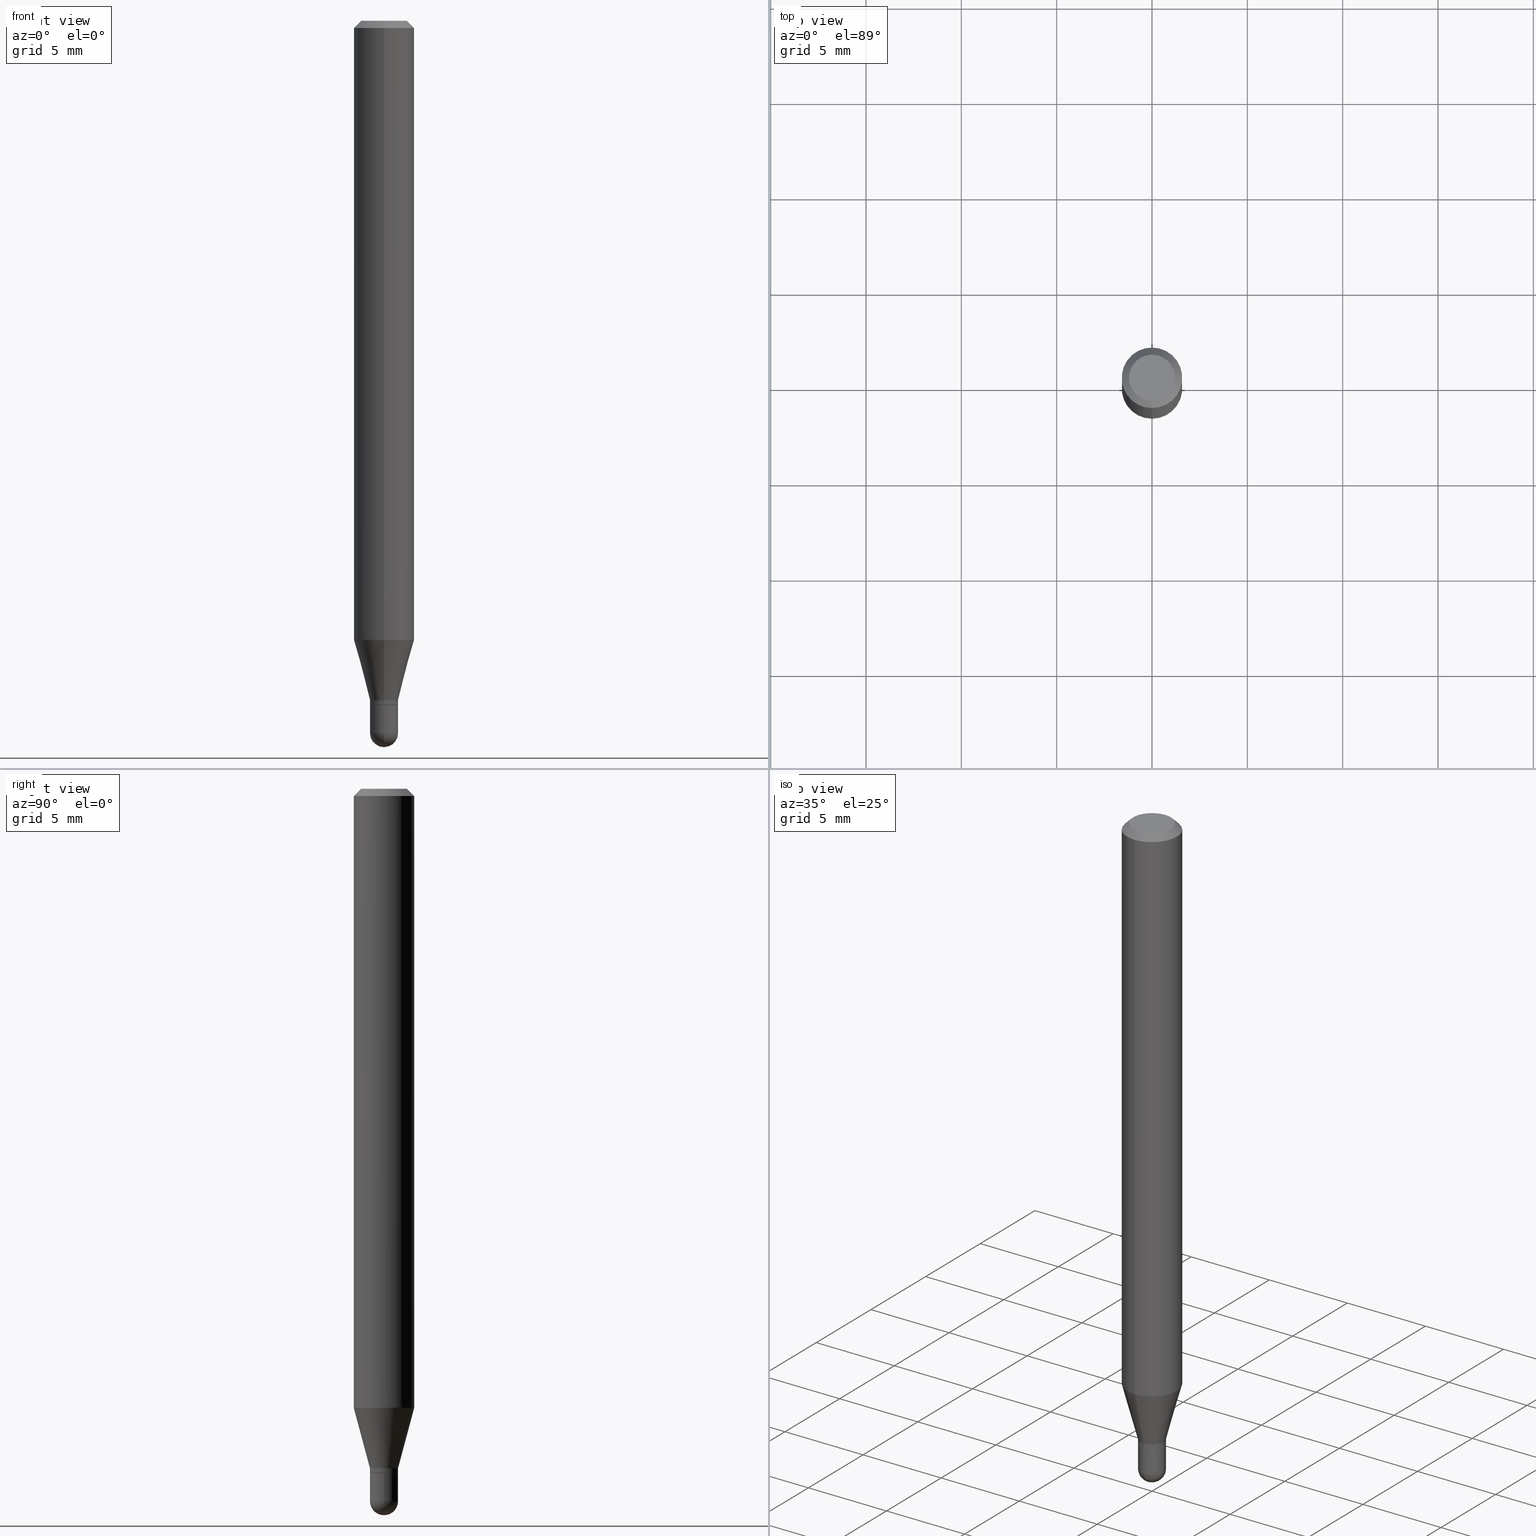
[diagram: canonical four-view strip — front | top / right | iso, engineering-drawing reading convention]
A machine part, canonical four-view strip (front | top / right | iso — engineering-drawing reading convention). The complete STEP part file that produces these views, byte-faithful:
ISO-10303-21;
HEADER;
FILE_DESCRIPTION (( 'STEP AP203' ),
    '1' );
FILE_NAME ('00793.STEP',
    '2024-03-07T18:23:17',
    ( '' ),
    ( '' ),
    'SwSTEP 2.0',
    'SolidWorks 2023',
    '' );
FILE_SCHEMA (( 'CONFIG_CONTROL_DESIGN' ));
ENDSEC;

DATA;
#1 = CONICAL_SURFACE ( 'NONE', #42, 0.02899999999999992514, 0.2617993877991505736 ) ;
#2 = CALENDAR_DATE ( 2024, 7, 3 ) ;
#3 = DIRECTION ( 'NONE',  ( -6.982962677686265922E-15, -1.000000000000000000, 3.483106191921935554E-15 ) ) ;
#4 = AXIS2_PLACEMENT_3D ( 'NONE', #384, #190, #224 ) ;
#5 = DIMENSIONAL_EXPONENTS ( 1.000000000000000000, 0.000000000000000000, 0.000000000000000000, 0.000000000000000000, 0.000000000000000000, 0.000000000000000000, 0.000000000000000000 ) ;
#6 = CALENDAR_DATE ( 2024, 7, 3 ) ;
#7 = DIRECTION ( 'NONE',  ( 2.445483780247488928E-29, -3.491459895133586651E-15, -1.000000000000000000 ) ) ;
#8 = ORGANIZATION ( 'UNSPECIFIED', 'UNSPECIFIED', '' ) ;
#9 = COORDINATED_UNIVERSAL_TIME_OFFSET ( 5, 0, .BEHIND. ) ;
#10 = DIRECTION ( 'NONE',  ( 2.438088387897960049E-29, -3.491481338843145188E-15, -1.000000000000000000 ) ) ;
#11 = EDGE_LOOP ( 'NONE', ( #412, #192, #209, #204, #293 ) ) ;
#12 = PERSON_AND_ORGANIZATION ( #69, #8 ) ;
#13 = DIRECTION ( 'NONE',  ( -6.982962677686265922E-15, -1.000000000000000000, 3.491459895133586651E-15 ) ) ;
#14 = ADVANCED_FACE ( 'NONE', ( #429 ), #75, .T. ) ;
#15 = VERTEX_POINT ( 'NONE', #61 ) ;
#16 = LINE ( 'NONE', #215, #405 ) ;
#17 = ORIENTED_EDGE ( 'NONE', *, *, #63, .F. ) ;
#18 = LINE ( 'NONE', #26, #271 ) ;
#19 = VERTEX_POINT ( 'NONE', #333 ) ;
#20 = DIRECTION ( 'NONE',  ( -2.445483780247488928E-29, 3.491459895133586651E-15, 1.000000000000000000 ) ) ;
#21 = CIRCLE ( 'NONE', #115, 0.06250000000000000000 ) ;
#22 = EDGE_LOOP ( 'NONE', ( #465, #426 ) ) ;
#23 = DIRECTION ( 'NONE',  ( 5.024295867788190974E-15, 0.7071067811865681119, 0.7071067811865270336 ) ) ;
#24 = PRODUCT_DEFINITION ( 'UNKNOWN', '', #453, #170 ) ;
#25 = ORIENTED_EDGE ( 'NONE', *, *, #340, .T. ) ;
#26 = CARTESIAN_POINT ( 'NONE',  ( 2.060573933704627882E-16, 0.02899999999999502281, -1.403000000000000025 ) ) ;
#27 = AXIS2_PLACEMENT_3D ( 'NONE', #417, #62, #143 ) ;
#28 = CC_DESIGN_PERSON_AND_ORGANIZATION_ASSIGNMENT ( #119, #45, ( #24 ) ) ;
#29 = CARTESIAN_POINT ( 'NONE',  ( 2.167025876121797914E-46, -3.093900683091128440E-32, -8.861338168035158887E-18 ) ) ;
#30 = CARTESIAN_POINT ( 'NONE',  ( 3.597284613898336423E-29, -5.135969049438267814E-15, -1.471000000000000307 ) ) ;
#31 = VERTEX_POINT ( 'NONE', #305 ) ;
#32 = DIRECTION ( 'NONE',  ( -6.982962677686265922E-15, -1.000000000000000000, 0.000000000000000000 ) ) ;
#33 = ORIENTED_EDGE ( 'NONE', *, *, #41, .T. ) ;
#34 = AXIS2_PLACEMENT_3D ( 'NONE', #303, #102, #341 ) ;
#35 = CARTESIAN_POINT ( 'NONE',  ( 0.000000000000000000, 0.000000000000000000, 0.000000000000000000 ) ) ;
#36 = VERTEX_POINT ( 'NONE', #107 ) ;
#37 = APPROVAL_DATE_TIME ( #440, #409 ) ;
#38 = DIRECTION ( 'NONE',  ( -6.982962677686266711E-15, -1.000000000000000000, 3.491459895133587439E-15 ) ) ;
#39 = APPLICATION_CONTEXT ( 'configuration controlled 3d designs of mechanical parts and assemblies' ) ;
#40 = PLANE ( 'NONE',  #455 ) ;
#41 = EDGE_CURVE ( 'NONE', #361, #131, #247, .T. ) ;
#42 = AXIS2_PLACEMENT_3D ( 'NONE', #407, #54, #210 ) ;
#43 = CALENDAR_DATE ( 2024, 7, 3 ) ;
#44 = CARTESIAN_POINT ( 'NONE',  ( 3.431013743687227308E-29, -4.898518232872422508E-15, -1.403000000000000025 ) ) ;
#45 = PERSON_AND_ORGANIZATION_ROLE ( 'creator' ) ;
#46 = FACE_OUTER_BOUND ( 'NONE', #370, .T. ) ;
#47 = ORIENTED_EDGE ( 'NONE', *, *, #337, .T. ) ;
#48 = COORDINATED_UNIVERSAL_TIME_OFFSET ( 5, 0, .BEHIND. ) ;
#49 = FACE_OUTER_BOUND ( 'NONE', #68, .T. ) ;
#50 = VERTEX_POINT ( 'NONE', #452 ) ;
#51 = AXIS2_PLACEMENT_3D ( 'NONE', #451, #20, #132 ) ;
#52 = DIRECTION ( 'NONE',  ( -6.982962677686265922E-15, -1.000000000000000000, 0.000000000000000000 ) ) ;
#53 = EDGE_LOOP ( 'NONE', ( #136, #47, #467, #424 ) ) ;
#54 = DIRECTION ( 'NONE',  ( -2.445483780247488928E-29, 3.491459895133586651E-15, 1.000000000000000000 ) ) ;
#55 = CARTESIAN_POINT ( 'NONE',  ( 3.594804631659716252E-29, -5.139520525155795537E-15, -1.471000000000000307 ) ) ;
#56 = ORIENTED_EDGE ( 'NONE', *, *, #484, .T. ) ;
#57 = AXIS2_PLACEMENT_3D ( 'NONE', #168, #130, #321 ) ;
#58 = CARTESIAN_POINT ( 'NONE',  ( 0.02900000000000000147, -5.135969049438267025E-15, -1.413000000000000256 ) ) ;
#59 = CIRCLE ( 'NONE', #414, 0.02850000000000000103 ) ;
#60 = CIRCLE ( 'NONE', #381, 0.06250000000000000000 ) ;
#61 = CARTESIAN_POINT ( 'NONE',  ( 2.025059176529374809E-16, 0.02899999999999483546, -1.471000000000000307 ) ) ;
#62 = DIRECTION ( 'NONE',  ( -2.445483780247488928E-29, 3.491459895133586651E-15, 1.000000000000000000 ) ) ;
#63 = EDGE_CURVE ( 'NONE', #183, #131, #95, .T. ) ;
#64 = CARTESIAN_POINT ( 'NONE',  ( -1.990144363140240186E-16, -0.02850000000000493458, -1.413000000000000256 ) ) ;
#65 = DIRECTION ( 'NONE',  ( -6.982962677686266711E-15, -1.000000000000000000, 3.491459895133587439E-15 ) ) ;
#66 = CIRCLE ( 'NONE', #324, 0.02900000000000000147 ) ;
#67 = DIRECTION ( 'NONE',  ( -2.445468806185136597E-29, 3.491481338843145583E-15, 1.000000000000000000 ) ) ;
#68 = EDGE_LOOP ( 'NONE', ( #25, #110 ) ) ;
#69 = PERSON ( 'UNSPECIFIED', 'UNSPECIFIED', 'UNSPECIFIED', ('UNSPECIFIED'), ('UNSPECIFIED'), ('UNSPECIFIED') ) ;
#70 = DIRECTION ( 'NONE',  ( -2.445483780247488928E-29, 3.491459895133586651E-15, 1.000000000000000000 ) ) ;
#71 = ORIENTED_EDGE ( 'NONE', *, *, #108, .F. ) ;
#72 = VERTEX_POINT ( 'NONE', #432 ) ;
#73 = CLOSED_SHELL ( 'NONE', ( #507, #369, #164, #14, #304, #359, #459, #83, #258, #392, #378, #123 ) ) ;
#74 = VECTOR ( 'NONE', #487, 39.37007874015748143 ) ;
#75 = CYLINDRICAL_SURFACE ( 'NONE', #260, 0.06250000000000000000 ) ;
#76 = EDGE_CURVE ( 'NONE', #124, #250, #338, .T. ) ;
#77 = CARTESIAN_POINT ( 'NONE',  ( -4.364351673553912750E-16, -0.06250000000000005551, -0.01499999999999979128 ) ) ;
#78 = ADVANCED_FACE ( 'NONE', ( #396 ), #282, .T. ) ;
#79 = DATE_TIME_ROLE ( 'creation_date' ) ;
#80 = DIRECTION ( 'NONE',  ( 2.445483780247488928E-29, -3.491459895133586651E-15, -1.000000000000000000 ) ) ;
#81 = CIRCLE ( 'NONE', #471, 0.02900000000000000147 ) ;
#82 = FACE_OUTER_BOUND ( 'NONE', #328, .T. ) ;
#83 = ADVANCED_FACE ( 'NONE', ( #82 ), #470, .T. ) ;
#84 = ORIENTED_EDGE ( 'NONE', *, *, #246, .F. ) ;
#85 = PERSON_AND_ORGANIZATION ( #69, #8 ) ;
#86 = DIRECTION ( 'NONE',  ( -1.000000000000000000, 6.982962677686265922E-15, -4.876176775795935793E-29 ) ) ;
#87 = CARTESIAN_POINT ( 'NONE',  ( 2.060573933704622951E-16, 0.02899999999999489098, -1.412500000000000311 ) ) ;
#88 = ORIENTED_EDGE ( 'NONE', *, *, #246, .T. ) ;
#89 = AXIS2_PLACEMENT_3D ( 'NONE', #348, #383, #342 ) ;
#90 = DIRECTION ( 'NONE',  ( 6.982962677686265922E-15, 1.000000000000000000, 0.000000000000000000 ) ) ;
#91 = ORIENTED_EDGE ( 'NONE', *, *, #277, .T. ) ;
#92 = DIRECTION ( 'NONE',  ( 1.000000000000000000, -6.982962677686265922E-15, 0.000000000000000000 ) ) ;
#93 = EDGE_LOOP ( 'NONE', ( #445, #177, #180, #406 ) ) ;
#94 = DIRECTION ( 'NONE',  ( 2.445483780247488368E-29, -3.491459895133586651E-15, -1.000000000000000000 ) ) ;
#95 = LINE ( 'NONE', #395, #373 ) ;
#96 = AXIS2_PLACEMENT_3D ( 'NONE', #44, #240, #120 ) ;
#97 = CARTESIAN_POINT ( 'NONE',  ( 3.594804631659716252E-29, -5.139520525155795537E-15, -1.471000000000000307 ) ) ;
#98 = VECTOR ( 'NONE', #423, 39.37007874015748143 ) ;
#99 = EDGE_CURVE ( 'NONE', #492, #72, #276, .T. ) ;
#100 = DIRECTION ( 'NONE',  ( -2.445483780247488928E-29, 3.491459895133586651E-15, 1.000000000000000000 ) ) ;
#101 = DIRECTION ( 'NONE',  ( -2.445483780247488928E-29, 3.491459895133586651E-15, 1.000000000000000000 ) ) ;
#102 = DIRECTION ( 'NONE',  ( -2.445483780247488928E-29, 3.491459895133586651E-15, 1.000000000000000000 ) ) ;
#103 = AXIS2_PLACEMENT_3D ( 'NONE', #457, #100, #52 ) ;
#104 = EDGE_LOOP ( 'NONE', ( #367, #478, #415, #331 ) ) ;
#105 = PRODUCT_DEFINITION_SHAPE ( 'NONE', 'NONE',  #24 ) ;
#106 = CARTESIAN_POINT ( 'NONE',  ( 2.042810365310630292E-16, 0.02849999999999506400, -1.413000000000000256 ) ) ;
#107 = CARTESIAN_POINT ( 'NONE',  ( -2.060573933703928507E-16, -0.02900000000000510503, -1.471000000000000307 ) ) ;
#108 = EDGE_CURVE ( 'NONE', #131, #361, #364, .T. ) ;
#109 = DIRECTION ( 'NONE',  ( -6.982962677686265922E-15, -1.000000000000000000, 0.000000000000000000 ) ) ;
#110 = ORIENTED_EDGE ( 'NONE', *, *, #482, .T. ) ;
#111 = APPROVAL_PERSON_ORGANIZATION ( #202, #409, #281 ) ;
#112 = COORDINATED_UNIVERSAL_TIME_OFFSET ( 5, 0, .BEHIND. ) ;
#113 = EDGE_LOOP ( 'NONE', ( #385, #253, #56, #84 ) ) ;
#114 = VECTOR ( 'NONE', #232, 39.37007874015748143 ) ;
#115 = AXIS2_PLACEMENT_3D ( 'NONE', #376, #368, #217 ) ;
#116 = ADVANCED_FACE ( 'NONE', ( #49 ), #40, .F. ) ;
#117 = APPLICATION_PROTOCOL_DEFINITION ( 'international standard', 'config_control_design', 1994, #39 ) ;
#118 = DIRECTION ( 'NONE',  ( -2.445483780247488928E-29, 3.491459895133586651E-15, 1.000000000000000000 ) ) ;
#119 = PERSON_AND_ORGANIZATION ( #69, #8 ) ;
#120 = DIRECTION ( 'NONE',  ( -6.982962677686265922E-15, -1.000000000000000000, 0.000000000000000000 ) ) ;
#121 = SHAPE_DEFINITION_REPRESENTATION ( #105, #497 ) ;
#122 = LINE ( 'NONE', #444, #505 ) ;
#123 = ADVANCED_FACE ( 'NONE', ( #46 ), #512, .T. ) ;
#124 = VERTEX_POINT ( 'NONE', #77 ) ;
#125 = CIRCLE ( 'NONE', #169, 0.02899999999999992514 ) ;
#126 = CC_DESIGN_APPROVAL ( #315, ( #462 ) ) ;
#127 = CALENDAR_DATE ( 2024, 7, 3 ) ;
#128 = AXIS2_PLACEMENT_3D ( 'NONE', #356, #129, #13 ) ;
#129 = DIRECTION ( 'NONE',  ( -2.445483780247488928E-29, 3.491459895133586651E-15, 1.000000000000000000 ) ) ;
#130 = DIRECTION ( 'NONE',  ( -2.445483780247488928E-29, 3.491459895133586651E-15, 1.000000000000000000 ) ) ;
#131 = VERTEX_POINT ( 'NONE', #201 ) ;
#132 = DIRECTION ( 'NONE',  ( -6.982962677686265922E-15, -1.000000000000000000, 0.000000000000000000 ) ) ;
#133 = AXIS2_PLACEMENT_3D ( 'NONE', #30, #421, #259 ) ;
#134 = EDGE_CURVE ( 'NONE', #142, #361, #317, .T. ) ;
#135 = DIRECTION ( 'NONE',  ( -1.000000000000000000, 6.982962677686266711E-15, -4.883557194083113462E-29 ) ) ;
#136 = ORIENTED_EDGE ( 'NONE', *, *, #267, .F. ) ;
#137 = DIRECTION ( 'NONE',  ( 1.000000000000000000, -6.982962677686265922E-15, 0.000000000000000000 ) ) ;
#138 = DIRECTION ( 'NONE',  ( -2.445483780247488928E-29, 3.491459895133586651E-15, 1.000000000000000000 ) ) ;
#139 = PLANE ( 'NONE',  #237 ) ;
#140 = MANIFOLD_SOLID_BREP ( 'Body-Move/Copy2[2]', #73 ) ;
#141 = EDGE_CURVE ( 'NONE', #15, #492, #404, .T. ) ;
#142 = VERTEX_POINT ( 'NONE', #243 ) ;
#143 = DIRECTION ( 'NONE',  ( -6.982962677686265922E-15, -1.000000000000000000, 4.370956789862821150E-15 ) ) ;
#144 = AXIS2_PLACEMENT_3D ( 'NONE', #29, #70, #65 ) ;
#145 = DIRECTION ( 'NONE',  ( -6.982962677686265922E-15, -1.000000000000000000, 3.491459895133586651E-15 ) ) ;
#146 = LOCAL_TIME ( 13, 23, 17.00000000000000000, #275 ) ;
#147 = LOCAL_TIME ( 13, 23, 17.00000000000000000, #9 ) ;
#148 = CARTESIAN_POINT ( 'NONE',  ( 3.455468581489702217E-29, -4.933432831823758516E-15, -1.413000000000000256 ) ) ;
#149 = AXIS2_PLACEMENT_3D ( 'NONE', #159, #480, #351 ) ;
#150 = CIRCLE ( 'NONE', #279, 0.02899999999999994249 ) ;
#151 = DIRECTION ( 'NONE',  ( -6.982962677686265922E-15, -1.000000000000000000, 3.491459895133586651E-15 ) ) ;
#152 = CARTESIAN_POINT ( 'NONE',  ( 3.454245839599578219E-29, -4.931687101876191282E-15, -1.412500000000000311 ) ) ;
#153 = EDGE_LOOP ( 'NONE', ( #175, #387, #307, #280 ) ) ;
#154 = APPROVAL_PERSON_ORGANIZATION ( #391, #502, #354 ) ;
#155 = FACE_OUTER_BOUND ( 'NONE', #11, .T. ) ;
#156 = ORIENTED_EDGE ( 'NONE', *, *, #157, .T. ) ;
#157 = EDGE_CURVE ( 'NONE', #250, #124, #60, .T. ) ;
#158 = ADVANCED_FACE ( 'NONE', ( #363 ), #326, .T. ) ;
#159 = CARTESIAN_POINT ( 'NONE',  ( 0.000000000000000000, 0.000000000000000000, 0.000000000000000000 ) ) ;
#160 = AXIS2_PLACEMENT_3D ( 'NONE', #199, #163, #475 ) ;
#161 = CC_DESIGN_APPROVAL ( #409, ( #453 ) ) ;
#162 = COORDINATED_UNIVERSAL_TIME_OFFSET ( 5, 0, .BEHIND. ) ;
#163 = DIRECTION ( 'NONE',  ( -1.000000000000000000, 6.982962677686266711E-15, -4.883557194083113462E-29 ) ) ;
#164 = ADVANCED_FACE ( 'NONE', ( #434 ), #345, .T. ) ;
#165 = PERSON_AND_ORGANIZATION_ROLE ( 'design_supplier' ) ;
#166 = DIRECTION ( 'NONE',  ( 6.982962677686265922E-15, 1.000000000000000000, -3.483106191921935554E-15 ) ) ;
#167 = PERSON_AND_ORGANIZATION_ROLE ( 'classification_officer' ) ;
#168 = CARTESIAN_POINT ( 'NONE',  ( 3.668225670371235459E-31, -5.237189842700382786E-17, -0.01500000000000000812 ) ) ;
#169 = AXIS2_PLACEMENT_3D ( 'NONE', #152, #101, #268 ) ;
#170 = DESIGN_CONTEXT ( 'detailed design', #39, 'design' ) ;
#171 = PERSON_AND_ORGANIZATION ( #69, #8 ) ;
#172 = DIRECTION ( 'NONE',  ( -6.982962677686265922E-15, -1.000000000000000000, 0.000000000000000000 ) ) ;
#173 = ORIENTED_EDGE ( 'NONE', *, *, #352, .T. ) ;
#174 = EDGE_CURVE ( 'NONE', #377, #19, #228, .T. ) ;
#175 = ORIENTED_EDGE ( 'NONE', *, *, #416, .T. ) ;
#176 = FACE_OUTER_BOUND ( 'NONE', #229, .T. ) ;
#177 = ORIENTED_EDGE ( 'NONE', *, *, #446, .T. ) ;
#178 = CIRCLE ( 'NONE', #27, 0.06250000000000000000 ) ;
#179 = DIRECTION ( 'NONE',  ( 1.839019923739602287E-15, 0.2588190451025252359, 0.9659258262890670910 ) ) ;
#180 = ORIENTED_EDGE ( 'NONE', *, *, #76, .T. ) ;
#181 = EDGE_CURVE ( 'NONE', #347, #289, #122, .T. ) ;
#182 = DIRECTION ( 'NONE',  ( -1.807323732225332111E-15, -0.2588190451025184635, 0.9659258262890689783 ) ) ;
#183 = VERTEX_POINT ( 'NONE', #87 ) ;
#184 = CARTESIAN_POINT ( 'NONE',  ( 3.597284613898336423E-29, -5.135969049438267814E-15, -1.471000000000000307 ) ) ;
#185 = AXIS2_PLACEMENT_3D ( 'NONE', #235, #473, #441 ) ;
#186 = FACE_OUTER_BOUND ( 'NONE', #113, .T. ) ;
#187 = CONICAL_SURFACE ( 'NONE', #103, 0.02899999999999992514, 0.2617993877991505736 ) ;
#188 = DIRECTION ( 'NONE',  ( -2.445483780247488928E-29, 3.491459895133586651E-15, 1.000000000000000000 ) ) ;
#189 = EDGE_CURVE ( 'NONE', #196, #400, #498, .T. ) ;
#190 = DIRECTION ( 'NONE',  ( -2.445483780247488928E-29, 3.491459895133586651E-15, 1.000000000000000000 ) ) ;
#191 = CC_DESIGN_PERSON_AND_ORGANIZATION_ASSIGNMENT ( #12, #316, ( #453 ) ) ;
#192 = ORIENTED_EDGE ( 'NONE', *, *, #99, .T. ) ;
#193 = CARTESIAN_POINT ( 'NONE',  ( 3.455468581489702217E-29, -4.933432831823758516E-15, -1.413000000000000256 ) ) ;
#194 = VECTOR ( 'NONE', #418, 39.37007874015748143 ) ;
#195 = ORIENTED_EDGE ( 'NONE', *, *, #337, .F. ) ;
#196 = VERTEX_POINT ( 'NONE', #197 ) ;
#197 = CARTESIAN_POINT ( 'NONE',  ( -3.773273898774340269E-16, -0.04749999999999999362, 1.569830068508101866E-16 ) ) ;
#198 = APPLICATION_CONTEXT ( 'configuration controlled 3d designs of mechanical parts and assemblies' ) ;
#199 = CARTESIAN_POINT ( 'NONE',  ( 3.594804631659716252E-29, -5.139520525155795537E-15, -1.471000000000000307 ) ) ;
#200 = DATE_TIME_ROLE ( 'classification_date' ) ;
#201 = CARTESIAN_POINT ( 'NONE',  ( 3.250733016102783684E-16, 0.02899999999999502281, -1.403000000000000025 ) ) ;
#202 = PERSON_AND_ORGANIZATION ( #69, #8 ) ;
#203 = CARTESIAN_POINT ( 'NONE',  ( -0.02900000000000000147, 2.060573933704290644E-16, -1.426491176173922626E-30 ) ) ;
#204 = ORIENTED_EDGE ( 'NONE', *, *, #181, .F. ) ;
#205 = DIRECTION ( 'NONE',  ( -2.445483780247488928E-29, 3.491459895133586651E-15, 1.000000000000000000 ) ) ;
#206 = CIRCLE ( 'NONE', #330, 0.02900000000000000147 ) ;
#207 = CARTESIAN_POINT ( 'NONE',  ( -2.025059176528669025E-16, -0.02900000000000482400, -1.403000000000000025 ) ) ;
#208 = EDGE_CURVE ( 'NONE', #131, #50, #18, .T. ) ;
#209 = ORIENTED_EDGE ( 'NONE', *, *, #340, .F. ) ;
#210 = DIRECTION ( 'NONE',  ( -6.982962677686265922E-15, -1.000000000000000000, 0.000000000000000000 ) ) ;
#211 = ORIENTED_EDGE ( 'NONE', *, *, #226, .F. ) ;
#212 = UNCERTAINTY_MEASURE_WITH_UNIT (LENGTH_MEASURE( 1.000000000000000082E-05 ), #265, 'distance_accuracy_value', 'NONE');
#213 = DIRECTION ( 'NONE',  ( -1.000000000000000000, 7.105427357601001070E-15, -4.926315508542082329E-29 ) ) ;
#214 = ORIENTED_EDGE ( 'NONE', *, *, #352, .F. ) ;
#215 = CARTESIAN_POINT ( 'NONE',  ( -2.025059176528669025E-16, -0.02900000000000482400, -1.403000000000000025 ) ) ;
#216 = DIRECTION ( 'NONE',  ( -6.982962677686265922E-15, -1.000000000000000000, 0.000000000000000000 ) ) ;
#217 = DIRECTION ( 'NONE',  ( -6.982962677686265922E-15, -1.000000000000000000, 4.370956789862821150E-15 ) ) ;
#218 =( NAMED_UNIT ( * ) PLANE_ANGLE_UNIT ( ) SI_UNIT ( $, .RADIAN. ) );
#219 = CARTESIAN_POINT ( 'NONE',  ( -4.287811248607203282E-16, -0.06250000000000005551, -0.01499999999999979128 ) ) ;
#220 = CIRCLE ( 'NONE', #261, 0.02899999999999994249 ) ;
#221 = EDGE_CURVE ( 'NONE', #36, #347, #206, .T. ) ;
#222 = DIRECTION ( 'NONE',  ( 1.000000000000000000, -6.982962677686266711E-15, 4.876176775795935793E-29 ) ) ;
#223 = ORIENTED_EDGE ( 'NONE', *, *, #490, .T. ) ;
#224 = DIRECTION ( 'NONE',  ( -6.982962677686265922E-15, -1.000000000000000000, 3.491459895133586651E-15 ) ) ;
#225 = EDGE_LOOP ( 'NONE', ( #335, #269, #272, #211 ) ) ;
#226 = EDGE_CURVE ( 'NONE', #50, #31, #21, .T. ) ;
#227 = DIRECTION ( 'NONE',  ( -2.445483780247488928E-29, 3.491459895133586651E-15, 1.000000000000000000 ) ) ;
#228 = CIRCLE ( 'NONE', #339, 0.02850000000000000103 ) ;
#229 = EDGE_LOOP ( 'NONE', ( #195, #343, #449, #284 ) ) ;
#230 = CARTESIAN_POINT ( 'NONE',  ( 0.000000000000000000, 0.000000000000000000, 0.000000000000000000 ) ) ;
#231 = APPROVAL_STATUS ( 'not_yet_approved' ) ;
#232 = DIRECTION ( 'NONE',  ( -2.445483780247488928E-29, 3.491459895133586651E-15, 1.000000000000000000 ) ) ;
#233 = CC_DESIGN_APPROVAL ( #502, ( #24 ) ) ;
#234 = SECURITY_CLASSIFICATION_LEVEL ( 'unclassified' ) ;
#235 = CARTESIAN_POINT ( 'NONE',  ( 3.597284613898336423E-29, -5.135969049438267814E-15, -1.471000000000000307 ) ) ;
#236 = AXIS2_PLACEMENT_3D ( 'NONE', #266, #138, #216 ) ;
#237 = AXIS2_PLACEMENT_3D ( 'NONE', #379, #94, #252 ) ;
#238 = PRODUCT_RELATED_PRODUCT_CATEGORY ( 'detail', '', ( #511 ) ) ;
#239 =( NAMED_UNIT ( * ) SI_UNIT ( $, .STERADIAN. ) SOLID_ANGLE_UNIT ( ) );
#240 = DIRECTION ( 'NONE',  ( -2.445483780247488928E-29, 3.491459895133586651E-15, 1.000000000000000000 ) ) ;
#241 = ORIENTED_EDGE ( 'NONE', *, *, #482, .F. ) ;
#242 = MECHANICAL_CONTEXT ( 'NONE', #198, 'mechanical' ) ;
#243 = CARTESIAN_POINT ( 'NONE',  ( -2.025059176528673462E-16, -0.02900000000000495584, -1.412500000000000311 ) ) ;
#244 = EDGE_LOOP ( 'NONE', ( #486, #390, #91, #469 ) ) ;
#245 = DIRECTION ( 'NONE',  ( -2.445483780247488928E-29, 3.491459895133586651E-15, 1.000000000000000000 ) ) ;
#246 = EDGE_CURVE ( 'NONE', #183, #142, #488, .T. ) ;
#247 = CIRCLE ( 'NONE', #236, 0.02899999999999992514 ) ;
#248 = ORIENTED_EDGE ( 'NONE', *, *, #99, .F. ) ;
#249 = CARTESIAN_POINT ( 'NONE',  ( 4.440892098500625669E-16, 0.06250000000000000000, -2.182162434458491657E-16 ) ) ;
#250 = VERTEX_POINT ( 'NONE', #494 ) ;
#251 = FACE_OUTER_BOUND ( 'NONE', #508, .T. ) ;
#252 = DIRECTION ( 'NONE',  ( 6.982962677686265922E-15, 1.000000000000000000, -3.491459895133586651E-15 ) ) ;
#253 = ORIENTED_EDGE ( 'NONE', *, *, #174, .T. ) ;
#254 = VECTOR ( 'NONE', #288, 39.37007874015748143 ) ;
#255 = LINE ( 'NONE', #249, #74 ) ;
#256 =( GEOMETRIC_REPRESENTATION_CONTEXT ( 3 ) GLOBAL_UNCERTAINTY_ASSIGNED_CONTEXT ( ( #212 ) ) GLOBAL_UNIT_ASSIGNED_CONTEXT ( ( #265, #218, #239 ) ) REPRESENTATION_CONTEXT ( 'NONE', 'WORKASPACE' ) );
#257 = CARTESIAN_POINT ( 'NONE',  ( 3.455447423139598357E-29, -4.933463131785365512E-15, -1.413000000000000256 ) ) ;
#258 = ADVANCED_FACE ( 'NONE', ( #251 ), #139, .F. ) ;
#259 = DIRECTION ( 'NONE',  ( 1.000000000000000000, -6.982962677686265922E-15, 0.000000000000000000 ) ) ;
#260 = AXIS2_PLACEMENT_3D ( 'NONE', #230, #393, #151 ) ;
#261 = AXIS2_PLACEMENT_3D ( 'NONE', #286, #447, #90 ) ;
#262 = CYLINDRICAL_SURFACE ( 'NONE', #420, 0.02900000000000000147 ) ;
#263 = APPROVAL_PERSON_ORGANIZATION ( #171, #315, #357 ) ;
#264 = ORIENTED_EDGE ( 'NONE', *, *, #446, .F. ) ;
#265 =( CONVERSION_BASED_UNIT ( 'INCH', #509 ) LENGTH_UNIT ( ) NAMED_UNIT ( #5 ) );
#266 = CARTESIAN_POINT ( 'NONE',  ( 3.431013743687227308E-29, -4.898518232872422508E-15, -1.403000000000000025 ) ) ;
#267 = EDGE_CURVE ( 'NONE', #318, #15, #220, .T. ) ;
#268 = DIRECTION ( 'NONE',  ( -6.982962677686265922E-15, -1.000000000000000000, 0.000000000000000000 ) ) ;
#269 = ORIENTED_EDGE ( 'NONE', *, *, #108, .T. ) ;
#270 = APPROVAL_DATE_TIME ( #476, #315 ) ;
#271 = VECTOR ( 'NONE', #179, 39.37007874015748143 ) ;
#272 = ORIENTED_EDGE ( 'NONE', *, *, #323, .T. ) ;
#273 = CARTESIAN_POINT ( 'NONE',  ( 0.000000000000000000, 0.000000000000000000, 0.000000000000000000 ) ) ;
#274 = CARTESIAN_POINT ( 'NONE',  ( 2.167025876121797914E-46, -3.093900683091128440E-32, -8.861338168035158887E-18 ) ) ;
#275 = COORDINATED_UNIVERSAL_TIME_OFFSET ( 5, 0, .BEHIND. ) ;
#276 = LINE ( 'NONE', #203, #344 ) ;
#277 = EDGE_CURVE ( 'NONE', #31, #124, #485, .T. ) ;
#278 = DIRECTION ( 'NONE',  ( -2.445468806185136877E-29, 3.491481338843145188E-15, 1.000000000000000000 ) ) ;
#279 = AXIS2_PLACEMENT_3D ( 'NONE', #97, #213, #334 ) ;
#280 = ORIENTED_EDGE ( 'NONE', *, *, #484, .F. ) ;
#281 = APPROVAL_ROLE ( '' ) ;
#282 = CYLINDRICAL_SURFACE ( 'NONE', #149, 0.02900000000000000147 ) ;
#283 = EDGE_CURVE ( 'NONE', #377, #183, #327, .T. ) ;
#284 = ORIENTED_EDGE ( 'NONE', *, *, #221, .F. ) ;
#285 = ORIENTED_EDGE ( 'NONE', *, *, #323, .F. ) ;
#286 = CARTESIAN_POINT ( 'NONE',  ( 3.594804631659716252E-29, -5.139520525155795537E-15, -1.471000000000000307 ) ) ;
#287 = EDGE_LOOP ( 'NONE', ( #248, #223, #422, #461, #241 ) ) ;
#288 = DIRECTION ( 'NONE',  ( 4.937700262164548042E-15, 0.7071067811865451302, -0.7071067811865499042 ) ) ;
#289 = VERTEX_POINT ( 'NONE', #58 ) ;
#290 = DIRECTION ( 'NONE',  ( -2.445468806185136597E-29, 3.491481338843145583E-15, 1.000000000000000000 ) ) ;
#291 = ORIENTED_EDGE ( 'NONE', *, *, #134, .T. ) ;
#292 = DIRECTION ( 'NONE',  ( -2.445468806185136597E-29, 3.491481338843145583E-15, 1.000000000000000000 ) ) ;
#293 = ORIENTED_EDGE ( 'NONE', *, *, #430, .T. ) ;
#294 = MANIFOLD_SOLID_BREP ( 'Body-Move/Copy2[1]', #295 ) ;
#295 = CLOSED_SHELL ( 'NONE', ( #500, #158, #116, #312, #78 ) ) ;
#296 = AXIS2_PLACEMENT_3D ( 'NONE', #358, #7, #166 ) ;
#297 = FACE_OUTER_BOUND ( 'NONE', #225, .T. ) ;
#298 = EDGE_CURVE ( 'NONE', #50, #250, #255, .T. ) ;
#299 = EDGE_CURVE ( 'NONE', #400, #250, #403, .T. ) ;
#300 = DIRECTION ( 'NONE',  ( -2.445483780247488928E-29, 3.491459895133586651E-15, 1.000000000000000000 ) ) ;
#301 = CARTESIAN_POINT ( 'NONE',  ( 3.455468581489702217E-29, -4.933432831823758516E-15, -1.413000000000000256 ) ) ;
#302 = AXIS2_PLACEMENT_3D ( 'NONE', #55, #135, #450 ) ;
#303 = CARTESIAN_POINT ( 'NONE',  ( 0.000000000000000000, 0.000000000000000000, 0.000000000000000000 ) ) ;
#304 = ADVANCED_FACE ( 'NONE', ( #411 ), #1, .T. ) ;
#305 = CARTESIAN_POINT ( 'NONE',  ( -4.364351673553605587E-16, -0.06250000000000449640, -1.277976297946442630 ) ) ;
#306 = CYLINDRICAL_SURFACE ( 'NONE', #34, 0.06250000000000000000 ) ;
#307 = ORIENTED_EDGE ( 'NONE', *, *, #427, .F. ) ;
#308 = EDGE_LOOP ( 'NONE', ( #173, #510, #375, #504 ) ) ;
#309 = APPLICATION_PROTOCOL_DEFINITION ( 'international standard', 'config_control_design', 1994, #198 ) ;
#310 = CIRCLE ( 'NONE', #89, 0.02900000000000000147 ) ;
#311 = DIRECTION ( 'NONE',  ( 6.982962677686265922E-15, 1.000000000000000000, -3.483106191921935554E-15 ) ) ;
#312 = ADVANCED_FACE ( 'NONE', ( #176 ), #329, .T. ) ;
#313 = DATE_AND_TIME ( #2, #493 ) ;
#314 = CARTESIAN_POINT ( 'NONE',  ( 3.668225670371235459E-31, -5.237189842700382786E-17, -0.01500000000000000812 ) ) ;
#315 = APPROVAL ( #325, 'UNSPECIFIED' ) ;
#316 = PERSON_AND_ORGANIZATION_ROLE ( 'creator' ) ;
#317 = LINE ( 'NONE', #402, #114 ) ;
#318 = VERTEX_POINT ( 'NONE', #496 ) ;
#319 = CC_DESIGN_SECURITY_CLASSIFICATION ( #462, ( #453 ) ) ;
#320 = CALENDAR_DATE ( 2024, 7, 3 ) ;
#321 = DIRECTION ( 'NONE',  ( -6.982962677686265922E-15, -1.000000000000000000, 3.483106191921935554E-15 ) ) ;
#322 = AXIS2_PLACEMENT_3D ( 'NONE', #399, #80, #311 ) ;
#323 = EDGE_CURVE ( 'NONE', #361, #31, #16, .T. ) ;
#324 = AXIS2_PLACEMENT_3D ( 'NONE', #257, #419, #466 ) ;
#325 = APPROVAL_STATUS ( 'not_yet_approved' ) ;
#326 = SPHERICAL_SURFACE ( 'NONE', #160, 0.02899999999999994249 ) ;
#327 = LINE ( 'NONE', #336, #456 ) ;
#328 = EDGE_LOOP ( 'NONE', ( #264, #443, #489, #156 ) ) ;
#329 = SPHERICAL_SURFACE ( 'NONE', #302, 0.02899999999999994249 ) ;
#330 = AXIS2_PLACEMENT_3D ( 'NONE', #184, #290, #92 ) ;
#331 = ORIENTED_EDGE ( 'NONE', *, *, #134, .F. ) ;
#332 = CARTESIAN_POINT ( 'NONE',  ( 4.364351673553919652E-16, 0.06249999999999995143, -0.01500000000000022669 ) ) ;
#333 = CARTESIAN_POINT ( 'NONE',  ( -1.990144363140240186E-16, -0.02850000000000493458, -1.413000000000000256 ) ) ;
#334 = DIRECTION ( 'NONE',  ( -7.105427357601001070E-15, -1.000000000000000000, 0.000000000000000000 ) ) ;
#335 = ORIENTED_EDGE ( 'NONE', *, *, #208, .F. ) ;
#336 = CARTESIAN_POINT ( 'NONE',  ( 2.025046796916630729E-16, 0.02849999999999506400, -1.413000000000000256 ) ) ;
#337 = EDGE_CURVE ( 'NONE', #318, #36, #150, .T. ) ;
#338 = CIRCLE ( 'NONE', #57, 0.06250000000000000000 ) ;
#339 = AXIS2_PLACEMENT_3D ( 'NONE', #477, #118, #172 ) ;
#340 = EDGE_CURVE ( 'NONE', #289, #72, #81, .T. ) ;
#341 = DIRECTION ( 'NONE',  ( -6.982962677686265922E-15, -1.000000000000000000, 3.491459895133586651E-15 ) ) ;
#342 = DIRECTION ( 'NONE',  ( 1.000000000000000000, -6.982962677686265922E-15, 0.000000000000000000 ) ) ;
#343 = ORIENTED_EDGE ( 'NONE', *, *, #267, .T. ) ;
#344 = VECTOR ( 'NONE', #481, 39.37007874015748143 ) ;
#345 = CONICAL_SURFACE ( 'NONE', #296, 0.06250000000000000000, 0.7853981633974483900 ) ;
#346 = DIRECTION ( 'NONE',  ( -2.445483780247488368E-29, 3.491459895133586651E-15, 1.000000000000000000 ) ) ;
#347 = VERTEX_POINT ( 'NONE', #454 ) ;
#348 = CARTESIAN_POINT ( 'NONE',  ( 3.597284613898336423E-29, -5.135969049438267814E-15, -1.471000000000000307 ) ) ;
#349 = ORIENTED_EDGE ( 'NONE', *, *, #189, .T. ) ;
#350 = APPROVAL_STATUS ( 'not_yet_approved' ) ;
#351 = DIRECTION ( 'NONE',  ( 1.000000000000000000, -6.982962677686266711E-15, 4.876176775795935793E-29 ) ) ;
#352 = EDGE_CURVE ( 'NONE', #31, #50, #178, .T. ) ;
#353 = CC_DESIGN_PERSON_AND_ORGANIZATION_ASSIGNMENT ( #401, #167, ( #462 ) ) ;
#354 = APPROVAL_ROLE ( '' ) ;
#355 = AXIS2_PLACEMENT_3D ( 'NONE', #274, #245, #38 ) ;
#356 = CARTESIAN_POINT ( 'NONE',  ( 0.000000000000000000, 0.000000000000000000, 0.000000000000000000 ) ) ;
#357 = APPROVAL_ROLE ( '' ) ;
#358 = CARTESIAN_POINT ( 'NONE',  ( 3.668225670371235459E-31, -5.237189842700382786E-17, -0.01500000000000000812 ) ) ;
#359 = ADVANCED_FACE ( 'NONE', ( #297 ), #187, .T. ) ;
#360 = DIRECTION ( 'NONE',  ( -2.445483780247488928E-29, 3.491459895133586651E-15, 1.000000000000000000 ) ) ;
#361 = VERTEX_POINT ( 'NONE', #207 ) ;
#362 = DATE_AND_TIME ( #43, #382 ) ;
#363 = FACE_OUTER_BOUND ( 'NONE', #53, .T. ) ;
#364 = CIRCLE ( 'NONE', #96, 0.02899999999999992514 ) ;
#365 = AXIS2_PLACEMENT_3D ( 'NONE', #148, #227, #32 ) ;
#366 = FACE_OUTER_BOUND ( 'NONE', #153, .T. ) ;
#367 = ORIENTED_EDGE ( 'NONE', *, *, #427, .T. ) ;
#368 = DIRECTION ( 'NONE',  ( -2.445483780247488928E-29, 3.491459895133586651E-15, 1.000000000000000000 ) ) ;
#369 = ADVANCED_FACE ( 'NONE', ( #366 ), #463, .T. ) ;
#370 = EDGE_LOOP ( 'NONE', ( #17, #88, #291, #71 ) ) ;
#371 = CC_DESIGN_PERSON_AND_ORGANIZATION_ASSIGNMENT ( #398, #435, ( #511 ) ) ;
#372 = CARTESIAN_POINT ( 'NONE',  ( -4.364351673553916201E-16, -0.06250000000000000000, 2.182162434458491657E-16 ) ) ;
#373 = VECTOR ( 'NONE', #360, 39.37007874015748143 ) ;
#374 = CONICAL_SURFACE ( 'NONE', #365, 0.02850000000000000103, 0.7853981633974739252 ) ;
#375 = ORIENTED_EDGE ( 'NONE', *, *, #76, .F. ) ;
#376 = CARTESIAN_POINT ( 'NONE',  ( 3.125270308168757960E-29, -4.462002991211296494E-15, -1.277976297946442852 ) ) ;
#377 = VERTEX_POINT ( 'NONE', #106 ) ;
#378 = ADVANCED_FACE ( 'NONE', ( #186 ), #374, .T. ) ;
#379 = CARTESIAN_POINT ( 'NONE',  ( 3.316907271900976096E-16, 0.04749999999999999362, -1.702750141028629442E-16 ) ) ;
#380 = CARTESIAN_POINT ( 'NONE',  ( -0.02900000000000000147, -4.828658697241387426E-15, -1.471000000000000307 ) ) ;
#381 = AXIS2_PLACEMENT_3D ( 'NONE', #314, #205, #3 ) ;
#382 = LOCAL_TIME ( 13, 23, 17.00000000000000000, #48 ) ;
#383 = DIRECTION ( 'NONE',  ( -2.445468806185136597E-29, 3.491481338843145583E-15, 1.000000000000000000 ) ) ;
#384 = CARTESIAN_POINT ( 'NONE',  ( 0.000000000000000000, 0.000000000000000000, 0.000000000000000000 ) ) ;
#385 = ORIENTED_EDGE ( 'NONE', *, *, #283, .F. ) ;
#386 = CYLINDRICAL_SURFACE ( 'NONE', #4, 0.02899999999999992514 ) ;
#387 = ORIENTED_EDGE ( 'NONE', *, *, #283, .T. ) ;
#388 = AXIS2_PLACEMENT_3D ( 'NONE', #193, #300, #109 ) ;
#389 = CARTESIAN_POINT ( 'NONE',  ( 3.455468581489702217E-29, -4.933432831823758516E-15, -1.413000000000000256 ) ) ;
#390 = ORIENTED_EDGE ( 'NONE', *, *, #226, .T. ) ;
#391 = PERSON_AND_ORGANIZATION ( #69, #8 ) ;
#392 = ADVANCED_FACE ( 'NONE', ( #458 ), #460, .F. ) ;
#393 = DIRECTION ( 'NONE',  ( -2.445483780247488928E-29, 3.491459895133586651E-15, 1.000000000000000000 ) ) ;
#394 = CC_DESIGN_DATE_AND_TIME_ASSIGNMENT ( #433, #79, ( #24 ) ) ;
#395 = CARTESIAN_POINT ( 'NONE',  ( 2.060573933704284974E-16, 0.02899999999999992514, -1.012523369588737541E-16 ) ) ;
#396 = FACE_OUTER_BOUND ( 'NONE', #287, .T. ) ;
#397 = LOCAL_TIME ( 13, 23, 17.00000000000000000, #112 ) ;
#398 = PERSON_AND_ORGANIZATION ( #69, #8 ) ;
#399 = CARTESIAN_POINT ( 'NONE',  ( 3.668225670371235459E-31, -5.237189842700382786E-17, -0.01500000000000000812 ) ) ;
#400 = VERTEX_POINT ( 'NONE', #506 ) ;
#401 = PERSON_AND_ORGANIZATION ( #69, #8 ) ;
#402 = CARTESIAN_POINT ( 'NONE',  ( -2.025059176529011933E-16, -0.02899999999999992514, 1.012523369588737541E-16 ) ) ;
#403 = LINE ( 'NONE', #332, #254 ) ;
#404 = CIRCLE ( 'NONE', #185, 0.02900000000000000147 ) ;
#405 = VECTOR ( 'NONE', #182, 39.37007874015748854 ) ;
#406 = ORIENTED_EDGE ( 'NONE', *, *, #299, .F. ) ;
#407 = CARTESIAN_POINT ( 'NONE',  ( 3.431013743687227308E-29, -4.898518232872422508E-15, -1.403000000000000025 ) ) ;
#408 = EDGE_CURVE ( 'NONE', #400, #196, #448, .T. ) ;
#409 = APPROVAL ( #350, 'UNSPECIFIED' ) ;
#410 = CC_DESIGN_DATE_AND_TIME_ASSIGNMENT ( #362, #200, ( #462 ) ) ;
#411 = FACE_OUTER_BOUND ( 'NONE', #483, .T. ) ;
#412 = ORIENTED_EDGE ( 'NONE', *, *, #141, .T. ) ;
#413 = DIRECTION ( 'NONE',  ( -2.445483780247488928E-29, 3.491459895133586651E-15, 1.000000000000000000 ) ) ;
#414 = AXIS2_PLACEMENT_3D ( 'NONE', #301, #188, #501 ) ;
#415 = ORIENTED_EDGE ( 'NONE', *, *, #41, .F. ) ;
#416 = EDGE_CURVE ( 'NONE', #19, #377, #59, .T. ) ;
#417 = CARTESIAN_POINT ( 'NONE',  ( 3.125270308168757960E-29, -4.462002991211296494E-15, -1.277976297946442852 ) ) ;
#418 = DIRECTION ( 'NONE',  ( -4.851104656540964275E-15, -0.7071067811865500152, -0.7071067811865450192 ) ) ;
#419 = DIRECTION ( 'NONE',  ( -2.445468806185136597E-29, 3.491481338843145583E-15, 1.000000000000000000 ) ) ;
#420 = AXIS2_PLACEMENT_3D ( 'NONE', #35, #67, #222 ) ;
#421 = DIRECTION ( 'NONE',  ( -2.445468806185136597E-29, 3.491481338843145583E-15, 1.000000000000000000 ) ) ;
#422 = ORIENTED_EDGE ( 'NONE', *, *, #221, .T. ) ;
#423 = DIRECTION ( 'NONE',  ( -4.937700262164674260E-15, -0.7071067811865632269, 0.7071067811865319186 ) ) ;
#424 = ORIENTED_EDGE ( 'NONE', *, *, #141, .F. ) ;
#425 = FACE_OUTER_BOUND ( 'NONE', #104, .T. ) ;
#426 = ORIENTED_EDGE ( 'NONE', *, *, #174, .F. ) ;
#427 = EDGE_CURVE ( 'NONE', #142, #183, #125, .T. ) ;
#428 = CIRCLE ( 'NONE', #133, 0.02900000000000000147 ) ;
#429 = FACE_OUTER_BOUND ( 'NONE', #308, .T. ) ;
#430 = EDGE_CURVE ( 'NONE', #347, #15, #428, .T. ) ;
#431 = DIRECTION ( 'NONE',  ( 0.000000000000000000, 0.000000000000000000, 1.000000000000000000 ) ) ;
#432 = CARTESIAN_POINT ( 'NONE',  ( -0.02900000000000000147, -4.828658697241387426E-15, -1.413000000000000256 ) ) ;
#433 = DATE_AND_TIME ( #320, #146 ) ;
#434 = FACE_OUTER_BOUND ( 'NONE', #93, .T. ) ;
#435 = PERSON_AND_ORGANIZATION_ROLE ( 'design_owner' ) ;
#436 = AXIS2_PLACEMENT_3D ( 'NONE', #389, #346, #145 ) ;
#437 = CARTESIAN_POINT ( 'NONE',  ( 2.025059176529362483E-16, 0.02899999999999506792, -1.413000000000000256 ) ) ;
#438 = ORIENTED_EDGE ( 'NONE', *, *, #408, .T. ) ;
#439 = CC_DESIGN_PERSON_AND_ORGANIZATION_ASSIGNMENT ( #85, #165, ( #453 ) ) ;
#440 = DATE_AND_TIME ( #127, #147 ) ;
#441 = DIRECTION ( 'NONE',  ( 1.000000000000000000, -6.982962677686265922E-15, 0.000000000000000000 ) ) ;
#442 = AXIS2_PLACEMENT_3D ( 'NONE', #273, #431, #472 ) ;
#443 = ORIENTED_EDGE ( 'NONE', *, *, #408, .F. ) ;
#444 = CARTESIAN_POINT ( 'NONE',  ( 0.02900000000000000147, -2.025059176529017356E-16, 1.414091264980821422E-30 ) ) ;
#445 = ORIENTED_EDGE ( 'NONE', *, *, #189, .F. ) ;
#446 = EDGE_CURVE ( 'NONE', #196, #124, #499, .T. ) ;
#447 = DIRECTION ( 'NONE',  ( 1.000000000000000000, -6.982962677686265922E-15, 4.883557194083112340E-29 ) ) ;
#448 = CIRCLE ( 'NONE', #144, 0.04749999999999999362 ) ;
#449 = ORIENTED_EDGE ( 'NONE', *, *, #430, .F. ) ;
#450 = DIRECTION ( 'NONE',  ( 6.982962677686266711E-15, 1.000000000000000000, 0.000000000000000000 ) ) ;
#451 = CARTESIAN_POINT ( 'NONE',  ( 3.454245839599578219E-29, -4.931687101876191282E-15, -1.412500000000000311 ) ) ;
#452 = CARTESIAN_POINT ( 'NONE',  ( 4.440892098500935790E-16, 0.06249999999999551054, -1.277976297946443296 ) ) ;
#453 = PRODUCT_DEFINITION_FORMATION_WITH_SPECIFIED_SOURCE ( 'ANY', '', #511, .NOT_KNOWN. ) ;
#454 = CARTESIAN_POINT ( 'NONE',  ( 0.02900000000000000147, -5.237222008264718177E-15, -1.471000000000000307 ) ) ;
#455 = AXIS2_PLACEMENT_3D ( 'NONE', #437, #10, #86 ) ;
#456 = VECTOR ( 'NONE', #23, 39.37007874015748143 ) ;
#457 = CARTESIAN_POINT ( 'NONE',  ( 3.431013743687227308E-29, -4.898518232872422508E-15, -1.403000000000000025 ) ) ;
#458 = FACE_OUTER_BOUND ( 'NONE', #22, .T. ) ;
#459 = ADVANCED_FACE ( 'NONE', ( #464 ), #306, .T. ) ;
#460 = PLANE ( 'NONE',  #436 ) ;
#461 = ORIENTED_EDGE ( 'NONE', *, *, #181, .T. ) ;
#462 = SECURITY_CLASSIFICATION ( '', '', #234 ) ;
#463 = CONICAL_SURFACE ( 'NONE', #388, 0.02850000000000000103, 0.7853981633974739252 ) ;
#464 = FACE_OUTER_BOUND ( 'NONE', #244, .T. ) ;
#465 = ORIENTED_EDGE ( 'NONE', *, *, #416, .F. ) ;
#466 = DIRECTION ( 'NONE',  ( 1.000000000000000000, -6.982962677686265922E-15, 0.000000000000000000 ) ) ;
#467 = ORIENTED_EDGE ( 'NONE', *, *, #490, .F. ) ;
#468 = LINE ( 'NONE', #64, #98 ) ;
#469 = ORIENTED_EDGE ( 'NONE', *, *, #157, .F. ) ;
#470 = CONICAL_SURFACE ( 'NONE', #322, 0.06250000000000000000, 0.7853981633974483900 ) ;
#471 = AXIS2_PLACEMENT_3D ( 'NONE', #491, #292, #137 ) ;
#472 = DIRECTION ( 'NONE',  ( 1.000000000000000000, 0.000000000000000000, 0.000000000000000000 ) ) ;
#473 = DIRECTION ( 'NONE',  ( -2.445468806185136597E-29, 3.491481338843145583E-15, 1.000000000000000000 ) ) ;
#474 = APPROVAL_DATE_TIME ( #313, #502 ) ;
#475 = DIRECTION ( 'NONE',  ( 6.982962677686266711E-15, 1.000000000000000000, 0.000000000000000000 ) ) ;
#476 = DATE_AND_TIME ( #6, #397 ) ;
#477 = CARTESIAN_POINT ( 'NONE',  ( 3.455468581489702217E-29, -4.933432831823758516E-15, -1.413000000000000256 ) ) ;
#478 = ORIENTED_EDGE ( 'NONE', *, *, #63, .T. ) ;
#479 = VECTOR ( 'NONE', #413, 39.37007874015748143 ) ;
#480 = DIRECTION ( 'NONE',  ( -2.445468806185136597E-29, 3.491481338843145583E-15, 1.000000000000000000 ) ) ;
#481 = DIRECTION ( 'NONE',  ( -2.445468806185136877E-29, 3.491481338843145188E-15, 1.000000000000000000 ) ) ;
#482 = EDGE_CURVE ( 'NONE', #72, #289, #66, .T. ) ;
#483 = EDGE_LOOP ( 'NONE', ( #33, #495, #214, #285 ) ) ;
#484 = EDGE_CURVE ( 'NONE', #19, #142, #468, .T. ) ;
#485 = LINE ( 'NONE', #372, #479 ) ;
#486 = ORIENTED_EDGE ( 'NONE', *, *, #298, .F. ) ;
#487 = DIRECTION ( 'NONE',  ( -2.445483780247488928E-29, 3.491459895133586651E-15, 1.000000000000000000 ) ) ;
#488 = CIRCLE ( 'NONE', #51, 0.02899999999999992514 ) ;
#489 = ORIENTED_EDGE ( 'NONE', *, *, #299, .T. ) ;
#490 = EDGE_CURVE ( 'NONE', #492, #36, #310, .T. ) ;
#491 = CARTESIAN_POINT ( 'NONE',  ( 3.455447423139598357E-29, -4.933463131785365512E-15, -1.413000000000000256 ) ) ;
#492 = VERTEX_POINT ( 'NONE', #380 ) ;
#493 = LOCAL_TIME ( 13, 23, 17.00000000000000000, #162 ) ;
#494 = CARTESIAN_POINT ( 'NONE',  ( 4.440892098500940720E-16, 0.06249999999999995143, -0.01500000000000022669 ) ) ;
#495 = ORIENTED_EDGE ( 'NONE', *, *, #208, .T. ) ;
#496 = CARTESIAN_POINT ( 'NONE',  ( 3.666963218158395370E-29, -5.238997746123483616E-15, -1.500000000000000222 ) ) ;
#497 = ADVANCED_BREP_SHAPE_REPRESENTATION ( '00793', ( #294, #140, #442 ), #256 ) ;
#498 = CIRCLE ( 'NONE', #355, 0.04749999999999999362 ) ;
#499 = LINE ( 'NONE', #219, #194 ) ;
#500 = ADVANCED_FACE ( 'NONE', ( #155 ), #262, .T. ) ;
#501 = DIRECTION ( 'NONE',  ( -6.982962677686265922E-15, -1.000000000000000000, 0.000000000000000000 ) ) ;
#502 = APPROVAL ( #231, 'UNSPECIFIED' ) ;
#503 =( LENGTH_UNIT ( ) NAMED_UNIT ( * ) SI_UNIT ( $, .METRE. ) );
#504 = ORIENTED_EDGE ( 'NONE', *, *, #277, .F. ) ;
#505 = VECTOR ( 'NONE', #278, 39.37007874015748143 ) ;
#506 = CARTESIAN_POINT ( 'NONE',  ( 3.840629472727447874E-16, 0.04749999999999999362, -1.747056831868805136E-16 ) ) ;
#507 = ADVANCED_FACE ( 'NONE', ( #425 ), #386, .T. ) ;
#508 = EDGE_LOOP ( 'NONE', ( #438, #349 ) ) ;
#509 = LENGTH_MEASURE_WITH_UNIT ( LENGTH_MEASURE( 0.02539999999999999897 ), #503 );
#510 = ORIENTED_EDGE ( 'NONE', *, *, #298, .T. ) ;
#511 = PRODUCT ( '00793', '00793', '', ( #242 ) ) ;
#512 = CYLINDRICAL_SURFACE ( 'NONE', #128, 0.02899999999999992514 ) ;
ENDSEC;
END-ISO-10303-21;
